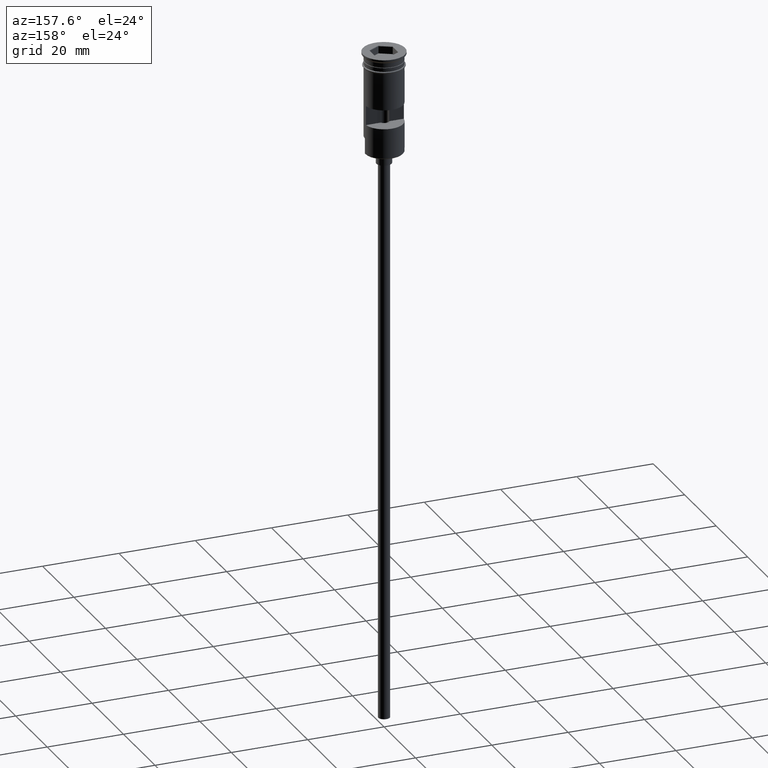
[diagram: clean part render]
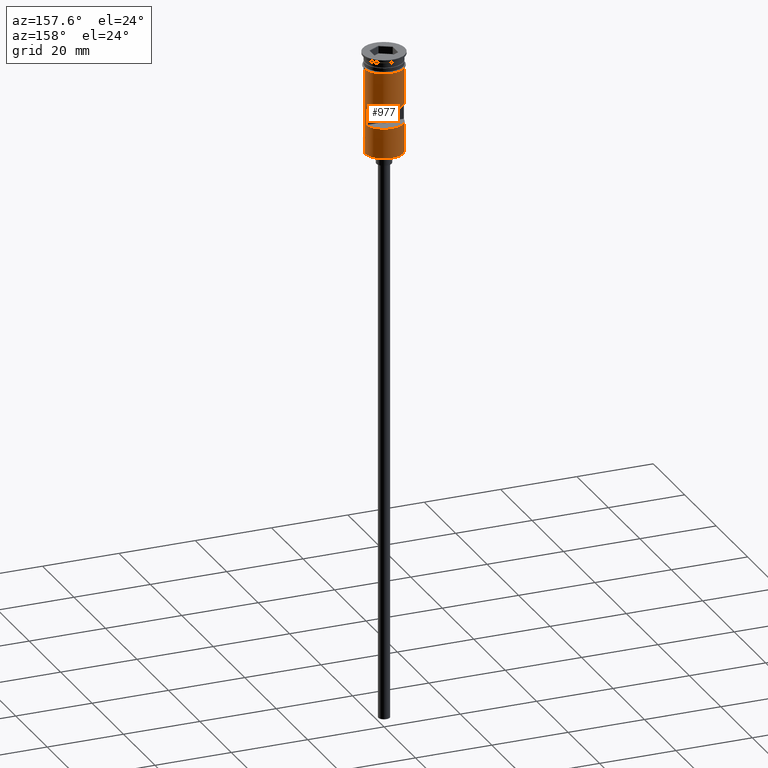
[diagram: same view with one face highlighted and labeled with its STEP entity id]
A machine part, auxiliary view. The second image highlights one B-rep face of the part: STEP entity #977.
In plain terms, the highlighted cylindrical surface (edge-blend (fillet) strip) has radius 5 mm, axis along (-0, -0, 1).
Its self-contained STEP definition (entity closure, byte-faithful):
#6 = DIRECTION ( 'NONE',  ( 1.000000000000000000, 0.000000000000000000, 0.000000000000000000 ) ) ;
#18 = CARTESIAN_POINT ( 'NONE',  ( 4.999999999999993783, 6.123233995736758394E-16, -26.50000000000000000 ) ) ;
#21 = VECTOR ( 'NONE', #1573, 1000.000000000000000 ) ;
#31 = ORIENTED_EDGE ( 'NONE', *, *, #1252, .F. ) ;
#39 = AXIS2_PLACEMENT_3D ( 'NONE', #720, #600, #1110 ) ;
#46 = VECTOR ( 'NONE', #1173, 1000.000000000000000 ) ;
#58 = EDGE_CURVE ( 'NONE', #1169, #1200, #1134, .T. ) ;
#70 = VERTEX_POINT ( 'NONE', #1492 ) ;
#84 = DIRECTION ( 'NONE',  ( 0.000000000000000000, 0.000000000000000000, -1.000000000000000000 ) ) ;
#110 = CARTESIAN_POINT ( 'NONE',  ( 4.999999999999996447, 6.123233995736761352E-16, -22.30000000000001137 ) ) ;
#150 = AXIS2_PLACEMENT_3D ( 'NONE', #1138, #1506, #539 ) ;
#186 = DIRECTION ( 'NONE',  ( -1.000000000000000000, 0.000000000000000000, 0.000000000000000000 ) ) ;
#190 = EDGE_LOOP ( 'NONE', ( #1585, #805, #31, #764, #502, #1476 ) ) ;
#195 = CARTESIAN_POINT ( 'NONE',  ( -4.999999999999993783, 0.000000000000000000, -26.30000000000000071 ) ) ;
#210 = EDGE_CURVE ( 'NONE', #706, #857, #318, .T. ) ;
#229 = VECTOR ( 'NONE', #651, 1000.000000000000000 ) ;
#240 = CARTESIAN_POINT ( 'NONE',  ( 4.963869458396339418, 0.5999999999999998668, -13.49999999999999822 ) ) ;
#260 = VERTEX_POINT ( 'NONE', #195 ) ;
#272 = EDGE_CURVE ( 'NONE', #260, #1466, #457, .T. ) ;
#274 = LINE ( 'NONE', #1510, #229 ) ;
#296 = CARTESIAN_POINT ( 'NONE',  ( -4.999999999999999112, 6.123233995736765296E-16, -3.799999999999998934 ) ) ;
#301 = AXIS2_PLACEMENT_3D ( 'NONE', #1210, #1298, #186 ) ;
#318 = CIRCLE ( 'NONE', #521, 4.999999999999996447 ) ;
#357 = DIRECTION ( 'NONE',  ( -0.000000000000000000, -0.000000000000000000, 1.000000000000000000 ) ) ;
#370 = CIRCLE ( 'NONE', #39, 4.999999999999996447 ) ;
#420 = EDGE_CURVE ( 'NONE', #1169, #260, #370, .T. ) ;
#451 = ORIENTED_EDGE ( 'NONE', *, *, #629, .F. ) ;
#457 = LINE ( 'NONE', #1078, #628 ) ;
#462 = CARTESIAN_POINT ( 'NONE',  ( -4.963869458396339418, 0.5999999999999998668, -18.50000000000000355 ) ) ;
#483 = AXIS2_PLACEMENT_3D ( 'NONE', #858, #357, #6 ) ;
#502 = ORIENTED_EDGE ( 'NONE', *, *, #58, .F. ) ;
#511 = FACE_OUTER_BOUND ( 'NONE', #190, .T. ) ;
#521 = AXIS2_PLACEMENT_3D ( 'NONE', #1198, #1429, #952 ) ;
#529 = VERTEX_POINT ( 'NONE', #296 ) ;
#539 = DIRECTION ( 'NONE',  ( 1.000000000000000000, 0.000000000000000000, 0.000000000000000000 ) ) ;
#562 = LINE ( 'NONE', #945, #1191 ) ;
#580 = ORIENTED_EDGE ( 'NONE', *, *, #210, .F. ) ;
#600 = DIRECTION ( 'NONE',  ( 0.000000000000000000, 0.000000000000000000, 1.000000000000000000 ) ) ;
#628 = VECTOR ( 'NONE', #1549, 1000.000000000000000 ) ;
#629 = EDGE_CURVE ( 'NONE', #795, #1250, #792, .T. ) ;
#647 = ORIENTED_EDGE ( 'NONE', *, *, #1542, .F. ) ;
#651 = DIRECTION ( 'NONE',  ( -0.000000000000000000, -0.000000000000000000, 1.000000000000000000 ) ) ;
#670 = CARTESIAN_POINT ( 'NONE',  ( -4.999999999999993783, 0.000000000000000000, -22.30000000000001137 ) ) ;
#677 = EDGE_CURVE ( 'NONE', #1466, #529, #1427, .T. ) ;
#706 = VERTEX_POINT ( 'NONE', #1418 ) ;
#708 = CARTESIAN_POINT ( 'NONE',  ( -4.999999999999996447, 6.123233995736762338E-16, 0.000000000000000000 ) ) ;
#720 = CARTESIAN_POINT ( 'NONE',  ( 0.000000000000000000, 0.000000000000000000, -26.30000000000000071 ) ) ;
#725 = CARTESIAN_POINT ( 'NONE',  ( 4.999999999999993783, 6.123233995736758394E-16, -26.30000000000000071 ) ) ;
#740 = ORIENTED_EDGE ( 'NONE', *, *, #1515, .F. ) ;
#756 = CYLINDRICAL_SURFACE ( 'NONE', #150, 4.999999999999996447 ) ;
#764 = ORIENTED_EDGE ( 'NONE', *, *, #1341, .F. ) ;
#792 = CIRCLE ( 'NONE', #301, 4.999999999999996447 ) ;
#795 = VERTEX_POINT ( 'NONE', #1477 ) ;
#805 = ORIENTED_EDGE ( 'NONE', *, *, #677, .T. ) ;
#857 = VERTEX_POINT ( 'NONE', #240 ) ;
#858 = CARTESIAN_POINT ( 'NONE',  ( 0.000000000000000000, 0.000000000000000000, -3.799999999999998934 ) ) ;
#892 = VECTOR ( 'NONE', #1003, 1000.000000000000000 ) ;
#945 = CARTESIAN_POINT ( 'NONE',  ( 4.963869458396339418, 0.5999999999999998668, 0.000000000000000000 ) ) ;
#952 = DIRECTION ( 'NONE',  ( 0.000000000000000000, -1.000000000000000000, 3.469446951953616654E-16 ) ) ;
#965 = EDGE_LOOP ( 'NONE', ( #647, #580, #740, #451 ) ) ;
#977 = ADVANCED_FACE ( 'NONE', ( #1273, #511 ), #756, .T. ) ;
#1003 = DIRECTION ( 'NONE',  ( -0.000000000000000000, -0.000000000000000000, 1.000000000000000000 ) ) ;
#1078 = CARTESIAN_POINT ( 'NONE',  ( -4.999999999999993783, 0.000000000000000000, -26.50000000000000000 ) ) ;
#1110 = DIRECTION ( 'NONE',  ( -1.000000000000000000, 0.000000000000000000, 0.000000000000000000 ) ) ;
#1134 = LINE ( 'NONE', #18, #892 ) ;
#1138 = CARTESIAN_POINT ( 'NONE',  ( 0.000000000000000000, 0.000000000000000000, 0.000000000000000000 ) ) ;
#1169 = VERTEX_POINT ( 'NONE', #725 ) ;
#1173 = DIRECTION ( 'NONE',  ( -0.000000000000000000, -0.000000000000000000, 1.000000000000000000 ) ) ;
#1190 = CARTESIAN_POINT ( 'NONE',  ( -4.963869458396339418, 0.5999999999999998668, 0.000000000000000000 ) ) ;
#1191 = VECTOR ( 'NONE', #84, 1000.000000000000000 ) ;
#1198 = CARTESIAN_POINT ( 'NONE',  ( 0.000000000000000000, 0.000000000000000000, -13.49999999999999822 ) ) ;
#1200 = VERTEX_POINT ( 'NONE', #110 ) ;
#1210 = CARTESIAN_POINT ( 'NONE',  ( 0.000000000000000000, 0.000000000000000000, -18.50000000000000355 ) ) ;
#1250 = VERTEX_POINT ( 'NONE', #462 ) ;
#1252 = EDGE_CURVE ( 'NONE', #70, #529, #1373, .T. ) ;
#1273 = FACE_BOUND ( 'NONE', #965, .T. ) ;
#1294 = LINE ( 'NONE', #1190, #46 ) ;
#1298 = DIRECTION ( 'NONE',  ( 0.000000000000000000, 0.000000000000000000, 1.000000000000000000 ) ) ;
#1341 = EDGE_CURVE ( 'NONE', #1200, #70, #274, .T. ) ;
#1373 = CIRCLE ( 'NONE', #483, 4.999999999999999112 ) ;
#1418 = CARTESIAN_POINT ( 'NONE',  ( -4.963869458396339418, 0.5999999999999998668, -13.49999999999999822 ) ) ;
#1427 = LINE ( 'NONE', #708, #21 ) ;
#1429 = DIRECTION ( 'NONE',  ( -0.000000000000000000, -3.942553354492746489E-16, -1.000000000000000000 ) ) ;
#1466 = VERTEX_POINT ( 'NONE', #670 ) ;
#1476 = ORIENTED_EDGE ( 'NONE', *, *, #420, .T. ) ;
#1477 = CARTESIAN_POINT ( 'NONE',  ( 4.963869458396339418, 0.5999999999999998668, -18.50000000000000355 ) ) ;
#1492 = CARTESIAN_POINT ( 'NONE',  ( 4.999999999999999112, 0.000000000000000000, -3.799999999999998934 ) ) ;
#1506 = DIRECTION ( 'NONE',  ( -0.000000000000000000, -0.000000000000000000, 1.000000000000000000 ) ) ;
#1510 = CARTESIAN_POINT ( 'NONE',  ( 4.999999999999996447, 0.000000000000000000, 0.000000000000000000 ) ) ;
#1515 = EDGE_CURVE ( 'NONE', #1250, #706, #1294, .T. ) ;
#1542 = EDGE_CURVE ( 'NONE', #857, #795, #562, .T. ) ;
#1549 = DIRECTION ( 'NONE',  ( -0.000000000000000000, -0.000000000000000000, 1.000000000000000000 ) ) ;
#1573 = DIRECTION ( 'NONE',  ( -0.000000000000000000, -0.000000000000000000, 1.000000000000000000 ) ) ;
#1585 = ORIENTED_EDGE ( 'NONE', *, *, #272, .T. ) ;